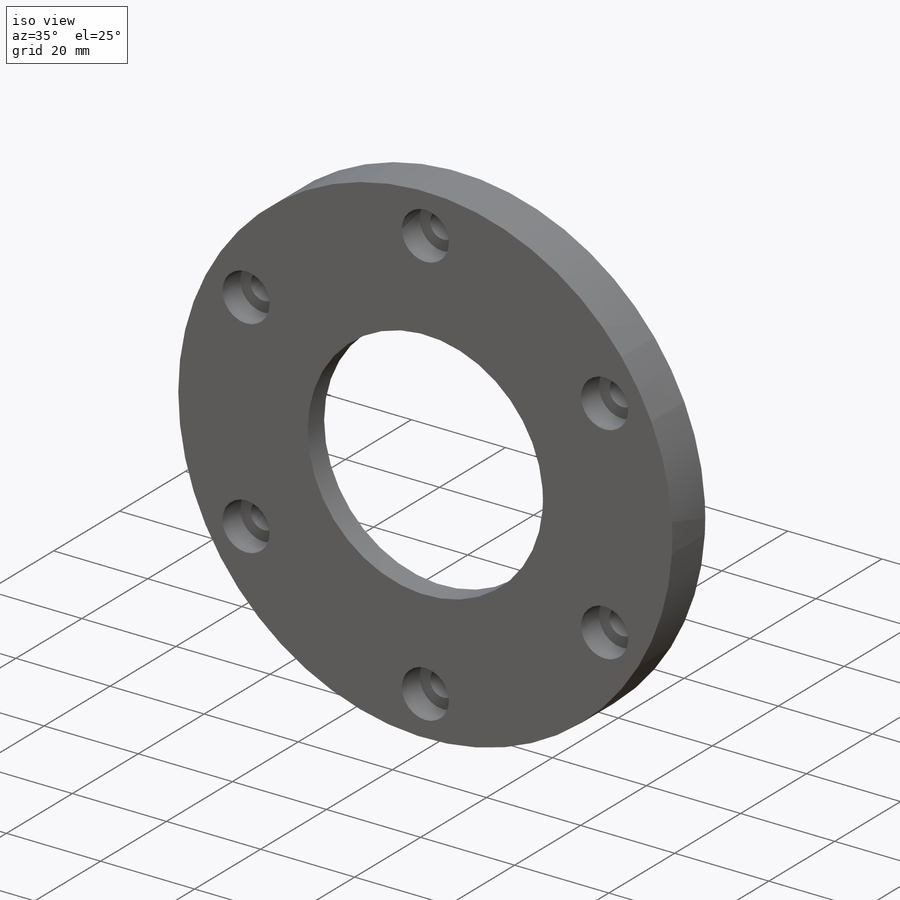
[diagram: iso view]
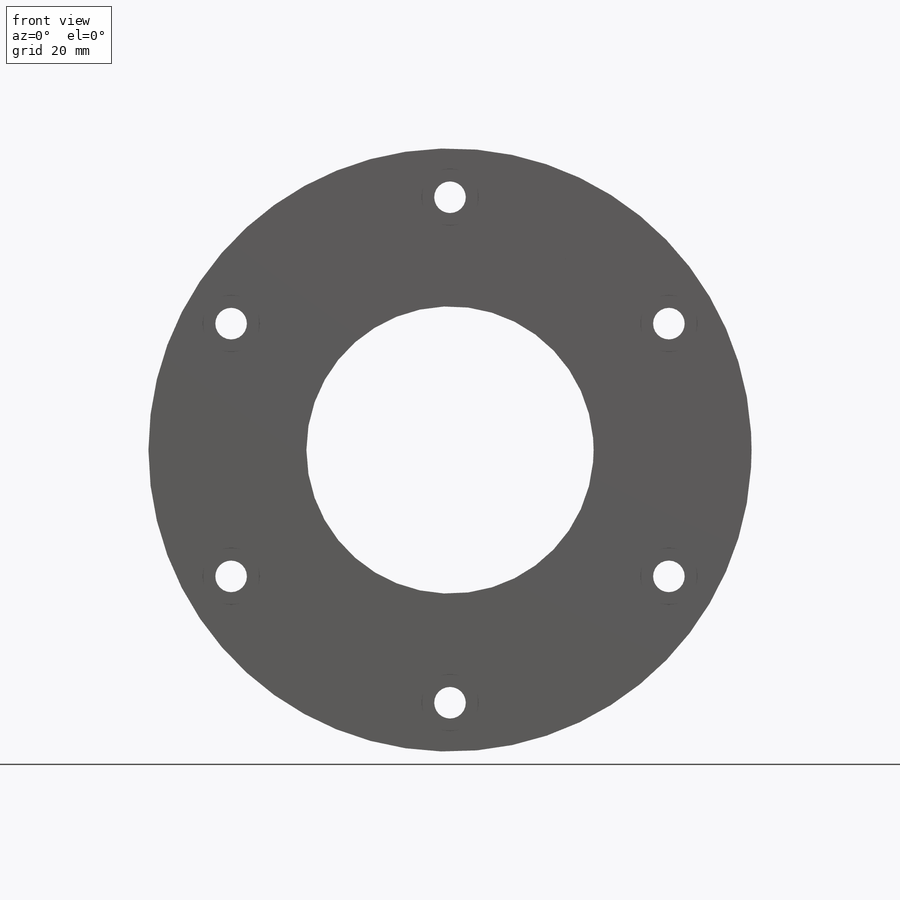
[diagram: front view]
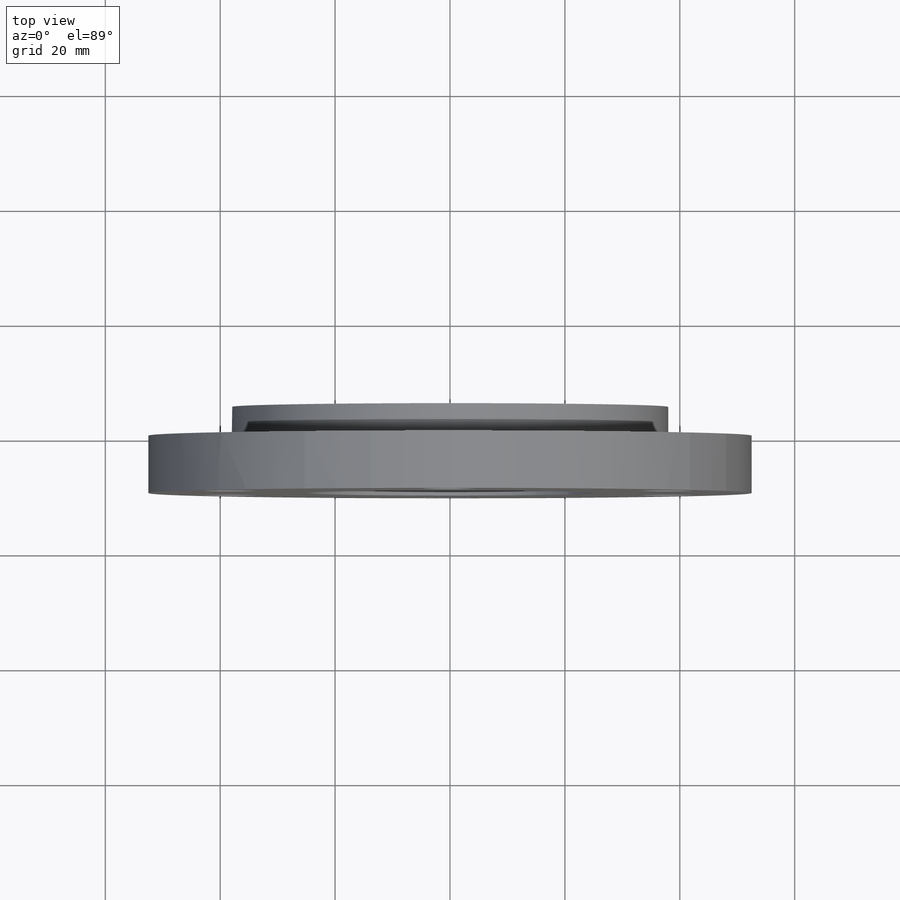
[diagram: top view]
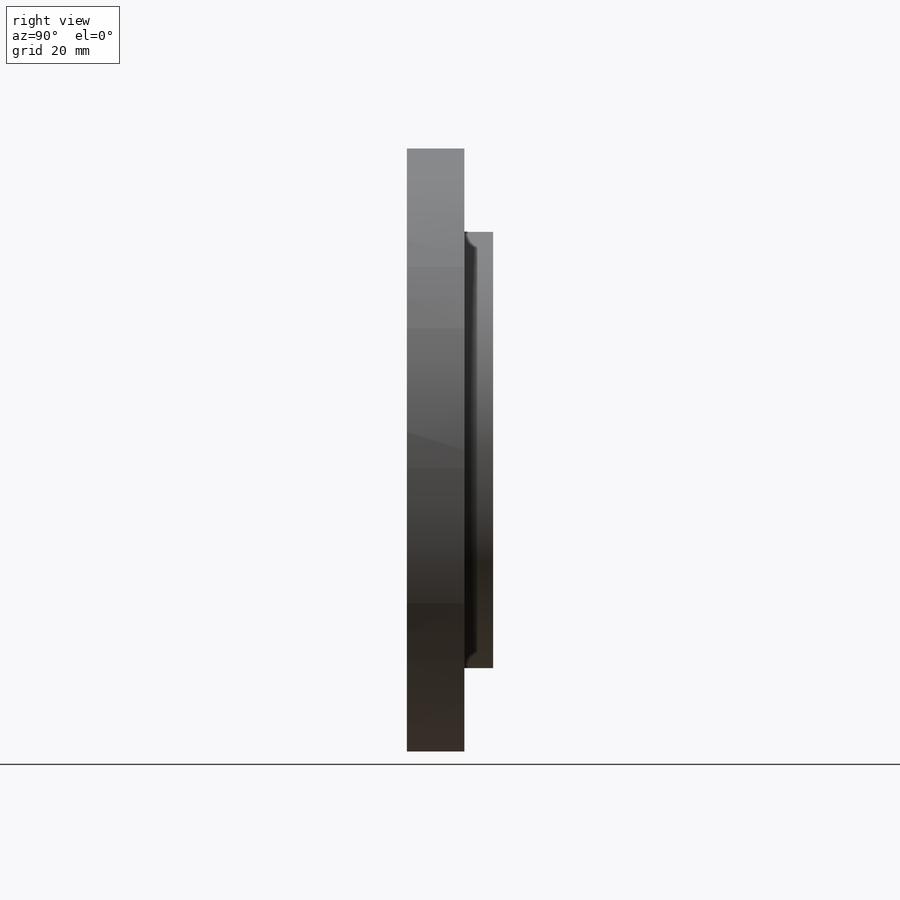
[diagram: right view]
SOLIDWORKS PART (.sldprt)
format: sldprt  version: not decoded by parser v0  size: 308,736 bytes
history: native  units: mm
features: sketch x10, plane x4, cut_extrude x4, extrude x3, material x1, hole x1, pattern_circular x1 (+9 scaffold rows collapsed)
feature tree (33):
  scaffold x9  (default folders/planes/origin — collapsed)
  material  "Material <nicht festgelegt>"
  plane  "Ebene vorne"
  plane  "Ebene oben"
  plane  "Ebene rechts"
  sketch  "Skizze1"  dims[D1=105.0mm]
  extrude  "Aufsatz-Linear austragen1"  Depth=10mm
  sketch  "Skizze2"  dims[D1=80.0mm]
  extrude  "Aufsatz-Linear austragen3"  Depth=5mm
  sketch  "Skizze5"  dims[D1=70.0mm]
  cut_extrude  "Schnitt-Linear austragen1"  [1 undecoded]
  sketch  "Skizze6"  dims[D1=76.0mm]
  extrude  "Aufsatz-Linear austragen4"  Depth=5mm
  sketch  "Skizze7"  dims[D1=69.5mm]
  cut_extrude  "Schnitt-Linear austragen2"  Depth=10mm
  sketch  "Skizze10"  dims[D1=50.0mm]
  cut_extrude  "Schnitt-Linear austragen4"  Depth=10mm
  sketch  "Skizze11"  dims[D1=88.0mm]
  hole  "Stirnsenkung für M5 Zylinderschraube mit Innensechskant1"  Diameter=5.5mm Depth=15mm
  sketch  "Skizze15"
  sketch  "Skizze14"  dims[hole-wizard template sketch: 42 standard entries collapsed; hole parameters kept: c12.Bohrungstiefe=15.0mm c12.Senkdurchmesser2=10.0mm c12.Senktiefe2=5.4mm]
  pattern_circular  "Kreismuster4"  Count=6 Angle=360deg
  plane  "Ebene1"
  sketch  "Skizze16"  dims[D1=40.0mm]
  cut_extrude  "o ring nut"  Depth=1mm
decode coverage: 17 of 19 modeling features carry decoded parameters
note: ~ marks probable driven/reference dimensions
note: 1 parameter value undecoded
note: suppression state not decoded; provenance and decode notes live in map.json
